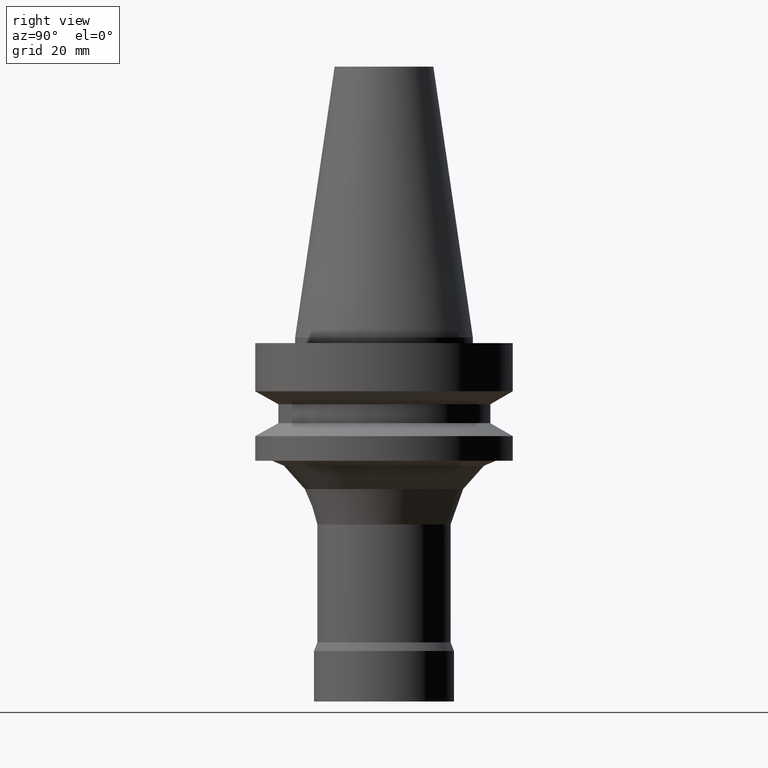
[diagram: clean part render]
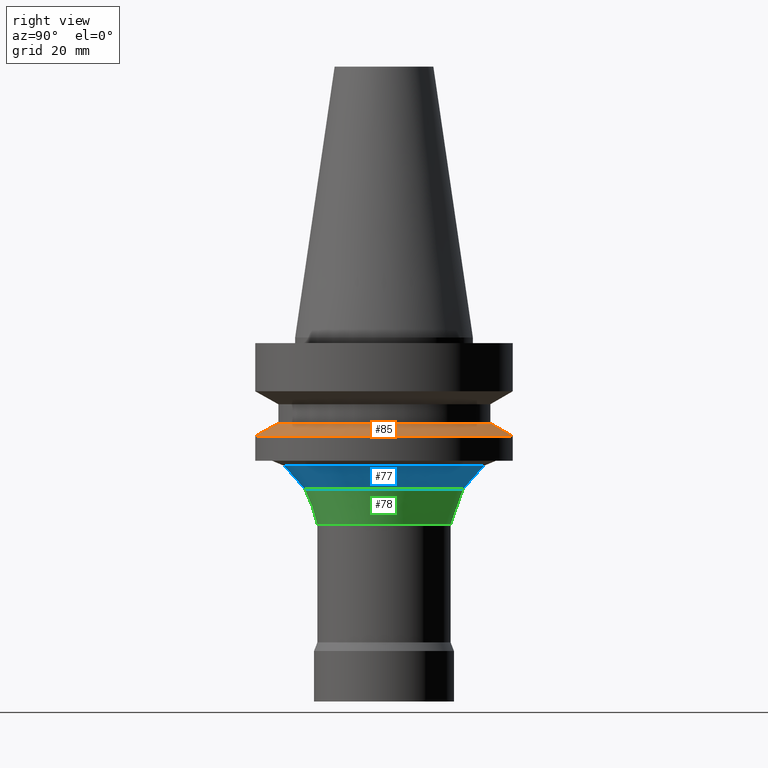
[diagram: same view with three faces highlighted in distinct colors, each labeled with its STEP entity id]
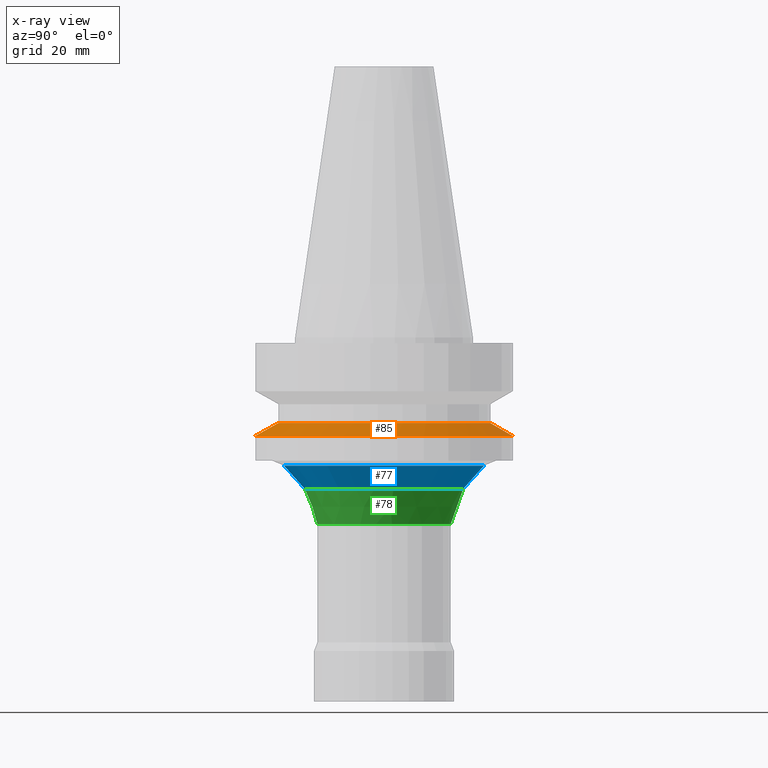
[diagram: x-ray of the same camera — body ghosted, the three highlighted faces saturated]
A machine part, right view with three faces highlighted in distinct colors.
The next image is the same camera in x-ray (body ghosted, the three faces saturated) — at least one of them is partly hidden behind the body in this view.
Their STEP definitions:

[orange] entity #85 — the highlighted conical surface has half-angle 60 deg.
#85=ADVANCED_FACE('',(#122,#123),#124,.T.);
#122=FACE_BOUND('',#171,.T.);
#123=FACE_BOUND('',#172,.T.);
#124=CONICAL_SURFACE('',#173,21.0,1.04719755058882);
#171=EDGE_LOOP('',(#240));
#172=EDGE_LOOP('',(#241));
#173=AXIS2_PLACEMENT_3D('',#242,#243,#244);
#240=ORIENTED_EDGE('',*,*,#282,.F.);
#241=ORIENTED_EDGE('',*,*,#283,.T.);
#242=CARTESIAN_POINT('',(1.00698416723543E-015,2.01396833447087E-015,-16.44529946));
#243=DIRECTION('',(6.12323399573677E-017,1.22464679914735E-016,-1.0));
#244=DIRECTION('',(-1.23259516440783E-032,1.0,1.22464679914735E-016));
#282=EDGE_CURVE('',#306,#306,#307,.T.);
#283=EDGE_CURVE('',#308,#308,#309,.T.);
#306=VERTEX_POINT('',#338);
#307=CIRCLE('',#339,23.0);
#308=VERTEX_POINT('',#340);
#309=CIRCLE('',#341,19.0);
#338=CARTESIAN_POINT('',(1.07768918324967E-015,23.0,-17.6));
#339=AXIS2_PLACEMENT_3D('',#378,#379,#380);
#340=CARTESIAN_POINT('',(9.36279151221199E-016,19.0,-15.29059892));
#341=AXIS2_PLACEMENT_3D('',#381,#382,#383);
#378=CARTESIAN_POINT('',(1.07768918324967E-015,2.15537836649934E-015,-17.6));
#379=DIRECTION('',(6.12323399573677E-017,1.22464679914735E-016,-1.0));
#380=DIRECTION('',(-1.23259516440783E-032,1.0,1.22464679914735E-016));
#381=CARTESIAN_POINT('',(9.36279151221199E-016,1.8725583024424E-015,-15.29059892));
#382=DIRECTION('',(6.12323399573677E-017,1.22464679914735E-016,-1.0));
#383=DIRECTION('',(-1.23259516440783E-032,1.0,1.22464679914735E-016));

[blue] entity #77 — the highlighted conical surface has half-angle 41.763 deg.
#77=ADVANCED_FACE('',(#99,#100),#101,.T.);
#99=FACE_BOUND('',#148,.T.);
#100=FACE_BOUND('',#149,.T.);
#101=CONICAL_SURFACE('',#150,15.9984074465628,0.728903220556842);
#148=EDGE_LOOP('',(#201));
#149=EDGE_LOOP('',(#202));
#150=AXIS2_PLACEMENT_3D('',#203,#204,#205);
#201=ORIENTED_EDGE('',*,*,#277,.F.);
#202=ORIENTED_EDGE('',*,*,#276,.T.);
#203=CARTESIAN_POINT('',(1.52971061150737E-015,3.05942122301474E-015,-24.9820701376497));
#204=DIRECTION('',(-6.12323399573677E-017,-1.22464679914735E-016,1.0));
#205=DIRECTION('',(-1.23259516440783E-032,1.0,1.22464679914735E-016));
#276=EDGE_CURVE('',#294,#294,#295,.T.);
#277=EDGE_CURVE('',#296,#296,#297,.T.);
#294=VERTEX_POINT('',#326);
#295=CIRCLE('',#327,17.857668450259);
#296=VERTEX_POINT('',#328);
#297=CIRCLE('',#329,14.1391464428666);
#326=CARTESIAN_POINT('',(1.40221452708678E-015,17.857668450259,-22.8999010663818));
#327=AXIS2_PLACEMENT_3D('',#360,#361,#362);
#328=CARTESIAN_POINT('',(1.65720669592796E-015,14.1391464428666,-27.0642392089176));
#329=AXIS2_PLACEMENT_3D('',#363,#364,#365);
#360=CARTESIAN_POINT('',(1.40221452708678E-015,2.80442905417356E-015,-22.8999010663818));
#361=DIRECTION('',(6.12323399573676E-017,1.22464679914735E-016,-1.0));
#362=DIRECTION('',(-1.23259516440783E-032,1.0,1.22464679914735E-016));
#363=CARTESIAN_POINT('',(1.65720669592796E-015,3.31441339185592E-015,-27.0642392089176));
#364=DIRECTION('',(6.12323399573677E-017,1.22464679914735E-016,-1.0));
#365=DIRECTION('',(-1.23259516440783E-032,1.0,1.22464679914735E-016));

[green] entity #78 — the highlighted conical surface has half-angle 19.548 deg.
#78=ADVANCED_FACE('',(#102,#103),#104,.T.);
#102=FACE_BOUND('',#151,.T.);
#103=FACE_BOUND('',#152,.T.);
#104=CONICAL_SURFACE('',#153,13.0195732214333,0.341180989090767);
#151=EDGE_LOOP('',(#206));
#152=EDGE_LOOP('',(#207));
#153=AXIS2_PLACEMENT_3D('',#208,#209,#210);
#206=ORIENTED_EDGE('',*,*,#278,.F.);
#207=ORIENTED_EDGE('',*,*,#277,.T.);
#208=CARTESIAN_POINT('',(1.85028079902255E-015,3.7005615980451E-015,-30.2173785994588));
#209=DIRECTION('',(-6.12323399573677E-017,-1.22464679914735E-016,1.0));
#210=DIRECTION('',(-1.23259516440783E-032,1.0,1.22464679914735E-016));
#277=EDGE_CURVE('',#296,#296,#297,.T.);
#278=EDGE_CURVE('',#298,#298,#299,.T.);
#296=VERTEX_POINT('',#328);
#297=CIRCLE('',#329,14.1391464428666);
#298=VERTEX_POINT('',#330);
#299=CIRCLE('',#331,11.9);
#328=CARTESIAN_POINT('',(1.65720669592796E-015,14.1391464428666,-27.0642392089176));
#329=AXIS2_PLACEMENT_3D('',#363,#364,#365);
#330=CARTESIAN_POINT('',(2.04335490211713E-015,11.9,-33.37051799));
#331=AXIS2_PLACEMENT_3D('',#366,#367,#368);
#363=CARTESIAN_POINT('',(1.65720669592796E-015,3.31441339185592E-015,-27.0642392089176));
#364=DIRECTION('',(6.12323399573677E-017,1.22464679914735E-016,-1.0));
#365=DIRECTION('',(-1.23259516440783E-032,1.0,1.22464679914735E-016));
#366=CARTESIAN_POINT('',(2.04335490211713E-015,4.08670980423427E-015,-33.37051799));
#367=DIRECTION('',(6.12323399573677E-017,1.22464679914735E-016,-1.0));
#368=DIRECTION('',(-1.23259516440783E-032,1.0,1.22464679914735E-016));